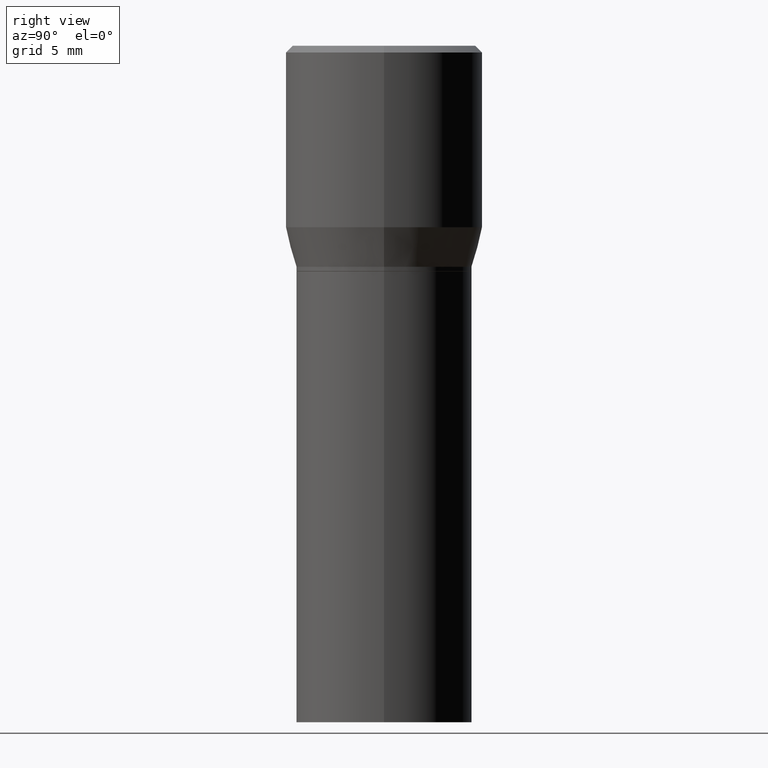
[diagram: clean part render]
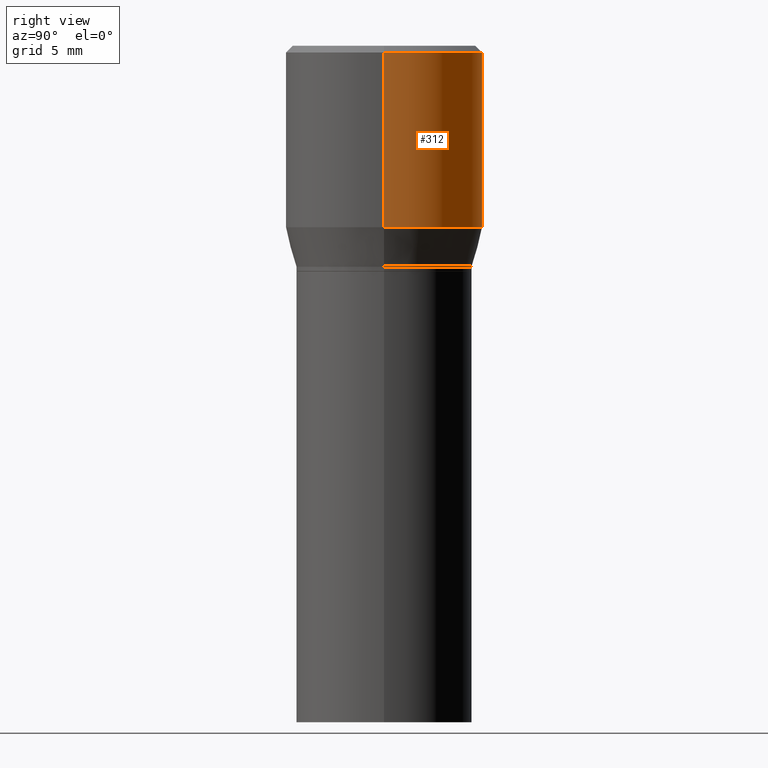
[diagram: same view with one face highlighted and labeled with its STEP entity id]
A machine part, right view. The second image highlights one B-rep face of the part: STEP entity #312.
In plain terms, the highlighted cylindrical surface (partial cylindrical patch) has radius 5.5562 mm, axis along (-0, 0, 1).
Its self-contained STEP definition (entity closure, byte-faithful):
#7 = FACE_OUTER_BOUND ( 'NONE', #311, .T. ) ;
#21 = AXIS2_PLACEMENT_3D ( 'NONE', #286, #51, #323 ) ;
#33 = ORIENTED_EDGE ( 'NONE', *, *, #236, .T. ) ;
#34 = LINE ( 'NONE', #316, #95 ) ;
#38 = DIRECTION ( 'NONE',  ( -2.445468806185136877E-29, 3.491481338843145188E-15, 1.000000000000000000 ) ) ;
#51 = DIRECTION ( 'NONE',  ( -2.445468806185136597E-29, 3.491481338843145583E-15, 1.000000000000000000 ) ) ;
#53 = VERTEX_POINT ( 'NONE', #141 ) ;
#81 = DIRECTION ( 'NONE',  ( -2.445468806185136877E-29, 3.491481338843145188E-15, 1.000000000000000000 ) ) ;
#95 = VECTOR ( 'NONE', #38, 39.37007874015748143 ) ;
#141 = CARTESIAN_POINT ( 'NONE',  ( 0.2187500000000000000, -1.579895305826517922E-15, -0.01499999999999999944 ) ) ;
#151 = CARTESIAN_POINT ( 'NONE',  ( -0.2187500000000000000, 1.554312234475219157E-15, -1.076017050993260622E-29 ) ) ;
#153 = DIRECTION ( 'NONE',  ( 1.000000000000000000, -6.982962677686266711E-15, 0.000000000000000000 ) ) ;
#179 = CARTESIAN_POINT ( 'NONE',  ( -0.2187500000000000000, 8.254944693389027239E-16, -0.01499999999999999944 ) ) ;
#181 = CIRCLE ( 'NONE', #303, 0.2187500000000000000 ) ;
#185 = DIRECTION ( 'NONE',  ( 1.000000000000000000, -6.982962677686266711E-15, 0.000000000000000000 ) ) ;
#202 = EDGE_CURVE ( 'NONE', #53, #345, #207, .T. ) ;
#207 = CIRCLE ( 'NONE', #244, 0.2187500000000000000 ) ;
#236 = EDGE_CURVE ( 'NONE', #275, #306, #181, .T. ) ;
#244 = AXIS2_PLACEMENT_3D ( 'NONE', #410, #265, #153 ) ;
#265 = DIRECTION ( 'NONE',  ( -2.445468806185136597E-29, 3.491481338843145583E-15, 1.000000000000000000 ) ) ;
#275 = VERTEX_POINT ( 'NONE', #346 ) ;
#286 = CARTESIAN_POINT ( 'NONE',  ( 0.000000000000000000, 0.000000000000000000, 0.000000000000000000 ) ) ;
#296 = DIRECTION ( 'NONE',  ( -2.445468806185136597E-29, 3.491481338843145583E-15, 1.000000000000000000 ) ) ;
#303 = AXIS2_PLACEMENT_3D ( 'NONE', #344, #296, #185 ) ;
#306 = VERTEX_POINT ( 'NONE', #407 ) ;
#311 = EDGE_LOOP ( 'NONE', ( #33, #436, #400, #449 ) ) ;
#312 = ADVANCED_FACE ( 'NONE', ( #7 ), #369, .T. ) ;
#316 = CARTESIAN_POINT ( 'NONE',  ( 0.2187500000000000000, -1.527523085743870843E-15, 1.066663669705360885E-29 ) ) ;
#321 = VECTOR ( 'NONE', #81, 39.37007874015748143 ) ;
#323 = DIRECTION ( 'NONE',  ( 1.000000000000000000, -6.982962677686266711E-15, 4.876176775795935232E-29 ) ) ;
#344 = CARTESIAN_POINT ( 'NONE',  ( 9.842606206466859638E-30, -1.405263310189985589E-15, -0.4024834085625100810 ) ) ;
#345 = VERTEX_POINT ( 'NONE', #179 ) ;
#346 = CARTESIAN_POINT ( 'NONE',  ( 0.2187500000000000000, -2.932786395933856235E-15, -0.4024834085625100810 ) ) ;
#368 = LINE ( 'NONE', #151, #321 ) ;
#369 = CYLINDRICAL_SURFACE ( 'NONE', #21, 0.2187500000000000000 ) ;
#389 = EDGE_CURVE ( 'NONE', #306, #345, #368, .T. ) ;
#400 = ORIENTED_EDGE ( 'NONE', *, *, #202, .F. ) ;
#407 = CARTESIAN_POINT ( 'NONE',  ( -0.2187500000000000000, 1.490489242852337896E-16, -0.4024834085625100810 ) ) ;
#410 = CARTESIAN_POINT ( 'NONE',  ( 3.668203209277705088E-31, -5.237222008264718399E-17, -0.01499999999999999944 ) ) ;
#436 = ORIENTED_EDGE ( 'NONE', *, *, #389, .T. ) ;
#439 = EDGE_CURVE ( 'NONE', #275, #53, #34, .T. ) ;
#449 = ORIENTED_EDGE ( 'NONE', *, *, #439, .F. ) ;